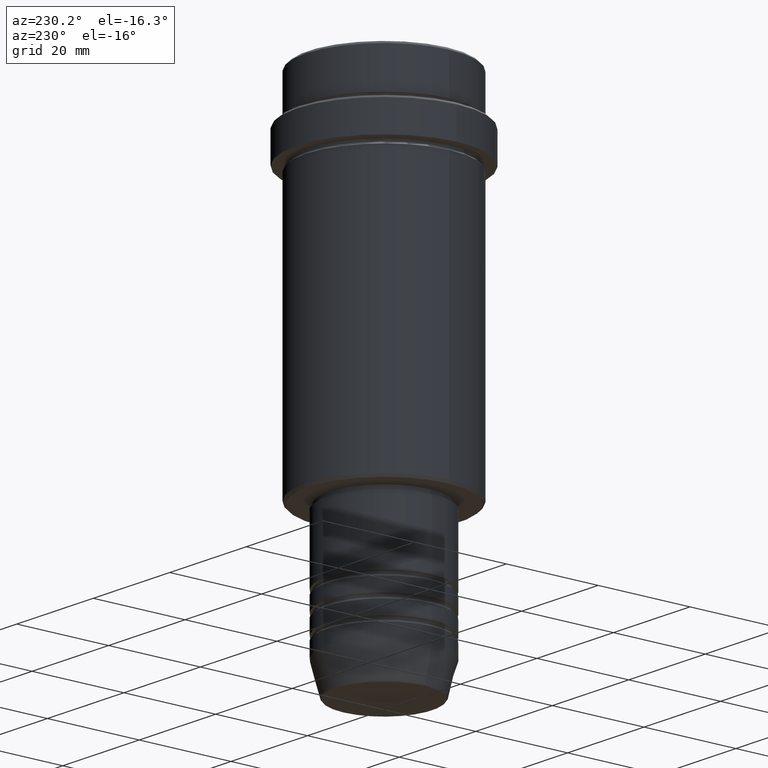
[diagram: clean part render]
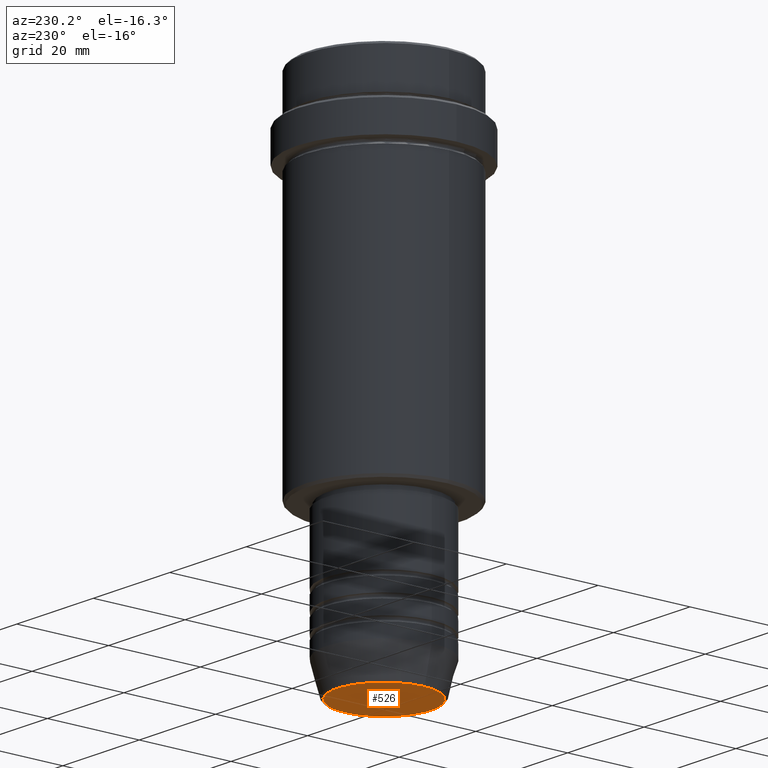
[diagram: same view with one face highlighted and labeled with its STEP entity id]
A machine part, auxiliary view. The second image highlights one B-rep face of the part: STEP entity #526.
In plain terms, the highlighted planar face has unit normal (0, -0, 1).
Its self-contained STEP definition (entity closure, byte-faithful):
#46 = AXIS2_PLACEMENT_3D ( 'NONE', #1084, #223, #537 ) ;
#187 = PLANE ( 'NONE',  #778 ) ;
#223 = DIRECTION ( 'NONE',  ( 0.000000000000000000, 0.000000000000000000, -1.000000000000000000 ) ) ;
#326 = ORIENTED_EDGE ( 'NONE', *, *, #1129, .T. ) ;
#332 = CARTESIAN_POINT ( 'NONE',  ( 0.000000000000000000, 0.000000000000000000, -110.0000000000000142 ) ) ;
#362 = EDGE_LOOP ( 'NONE', ( #976, #326 ) ) ;
#510 = DIRECTION ( 'NONE',  ( 0.000000000000000000, -0.000000000000000000, 1.000000000000000000 ) ) ;
#515 = CIRCLE ( 'NONE', #46, 10.24069215899265473 ) ;
#526 = ADVANCED_FACE ( 'NONE', ( #715 ), #187, .F. ) ;
#537 = DIRECTION ( 'NONE',  ( 1.000000000000000000, 0.000000000000000000, 0.000000000000000000 ) ) ;
#606 = CARTESIAN_POINT ( 'NONE',  ( 0.000000000000000000, 0.000000000000000000, -110.0000000000000142 ) ) ;
#715 = FACE_OUTER_BOUND ( 'NONE', #362, .T. ) ;
#717 = AXIS2_PLACEMENT_3D ( 'NONE', #332, #1100, #979 ) ;
#778 = AXIS2_PLACEMENT_3D ( 'NONE', #606, #510, #949 ) ;
#949 = DIRECTION ( 'NONE',  ( 1.000000000000000000, 0.000000000000000000, 0.000000000000000000 ) ) ;
#952 = CIRCLE ( 'NONE', #717, 10.24069215899265473 ) ;
#965 = VERTEX_POINT ( 'NONE', #1405 ) ;
#976 = ORIENTED_EDGE ( 'NONE', *, *, #1253, .T. ) ;
#979 = DIRECTION ( 'NONE',  ( 1.000000000000000000, 0.000000000000000000, 0.000000000000000000 ) ) ;
#1084 = CARTESIAN_POINT ( 'NONE',  ( 0.000000000000000000, 0.000000000000000000, -110.0000000000000142 ) ) ;
#1100 = DIRECTION ( 'NONE',  ( 0.000000000000000000, 0.000000000000000000, -1.000000000000000000 ) ) ;
#1129 = EDGE_CURVE ( 'NONE', #1342, #965, #952, .T. ) ;
#1152 = CARTESIAN_POINT ( 'NONE',  ( -10.24069215899265473, 1.283696036640841981E-15, -110.0000000000000142 ) ) ;
#1253 = EDGE_CURVE ( 'NONE', #965, #1342, #515, .T. ) ;
#1342 = VERTEX_POINT ( 'NONE', #1152 ) ;
#1405 = CARTESIAN_POINT ( 'NONE',  ( 10.24069215899265473, 0.000000000000000000, -110.0000000000000142 ) ) ;